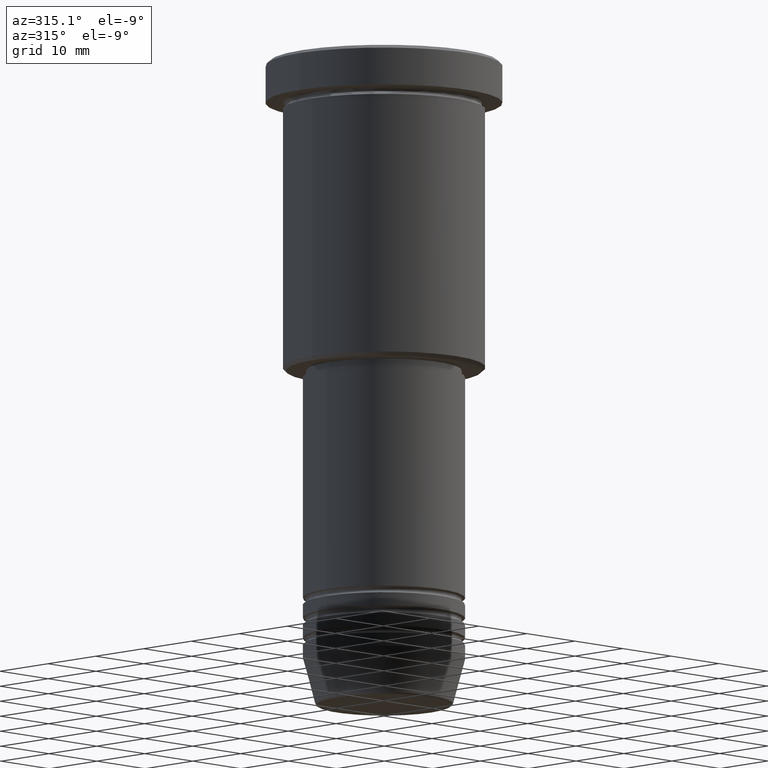
[diagram: clean part render]
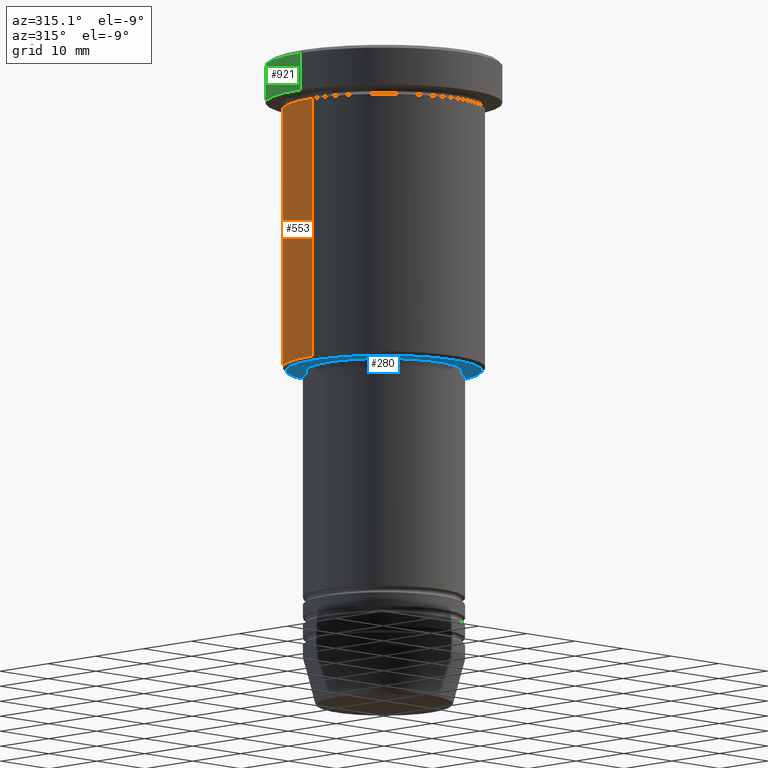
[diagram: same view with three faces highlighted in distinct colors, each labeled with its STEP entity id]
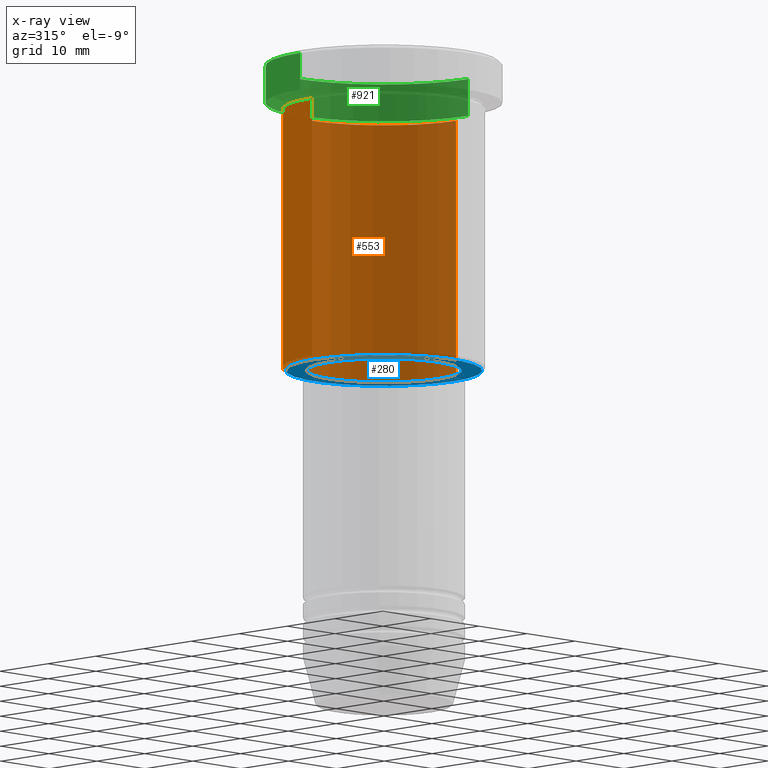
[diagram: x-ray of the same camera — body ghosted, the three highlighted faces saturated]
A machine part, auxiliary view with three faces highlighted in distinct colors.
The next image is the same camera in x-ray (body ghosted, the three faces saturated) — at least one of them is partly hidden behind the body in this view.
Their STEP definitions:

[orange] entity #553 — the highlighted cylindrical surface (partial cylindrical patch) has radius 15 mm, axis along (-0, -0, 1).
#18 = ORIENTED_EDGE ( 'NONE', *, *, #1077, .F. ) ;
#19 = ORIENTED_EDGE ( 'NONE', *, *, #180, .T. ) ;
#23 = VECTOR ( 'NONE', #848, 1000.000000000000000 ) ;
#24 = DIRECTION ( 'NONE',  ( -0.000000000000000000, -0.000000000000000000, 1.000000000000000000 ) ) ;
#30 = CARTESIAN_POINT ( 'NONE',  ( 15.00000000000000000, 0.000000000000000000, -6.999999999999995559 ) ) ;
#125 = LINE ( 'NONE', #316, #23 ) ;
#140 = AXIS2_PLACEMENT_3D ( 'NONE', #542, #1004, #380 ) ;
#180 = EDGE_CURVE ( 'NONE', #421, #1176, #346, .T. ) ;
#197 = LINE ( 'NONE', #555, #901 ) ;
#198 = FACE_OUTER_BOUND ( 'NONE', #711, .T. ) ;
#242 = EDGE_CURVE ( 'NONE', #1176, #619, #125, .T. ) ;
#269 = DIRECTION ( 'NONE',  ( -0.000000000000000000, -0.000000000000000000, 1.000000000000000000 ) ) ;
#274 = AXIS2_PLACEMENT_3D ( 'NONE', #632, #269, #816 ) ;
#316 = CARTESIAN_POINT ( 'NONE',  ( -15.00000000000000000, 1.836970198721029589E-15, 0.000000000000000000 ) ) ;
#339 = VERTEX_POINT ( 'NONE', #30 ) ;
#346 = CIRCLE ( 'NONE', #1008, 15.00000000000000000 ) ;
#380 = DIRECTION ( 'NONE',  ( 1.000000000000000000, 0.000000000000000000, 0.000000000000000000 ) ) ;
#392 = DIRECTION ( 'NONE',  ( -1.000000000000000000, 0.000000000000000000, 0.000000000000000000 ) ) ;
#421 = VERTEX_POINT ( 'NONE', #1074 ) ;
#459 = CYLINDRICAL_SURFACE ( 'NONE', #274, 15.00000000000000000 ) ;
#464 = CARTESIAN_POINT ( 'NONE',  ( -15.00000000000000000, 1.836970198721029589E-15, -6.999999999999995559 ) ) ;
#542 = CARTESIAN_POINT ( 'NONE',  ( 0.000000000000000000, 0.000000000000000000, -6.999999999999995559 ) ) ;
#553 = ADVANCED_FACE ( 'NONE', ( #198 ), #459, .T. ) ;
#555 = CARTESIAN_POINT ( 'NONE',  ( 15.00000000000000000, 0.000000000000000000, 0.000000000000000000 ) ) ;
#559 = DIRECTION ( 'NONE',  ( -0.000000000000000000, -0.000000000000000000, 1.000000000000000000 ) ) ;
#619 = VERTEX_POINT ( 'NONE', #464 ) ;
#632 = CARTESIAN_POINT ( 'NONE',  ( 0.000000000000000000, 0.000000000000000000, 0.000000000000000000 ) ) ;
#665 = CARTESIAN_POINT ( 'NONE',  ( -15.00000000000000000, 1.836970198721029589E-15, -45.49999999999999289 ) ) ;
#711 = EDGE_LOOP ( 'NONE', ( #19, #1048, #18, #1078 ) ) ;
#743 = CARTESIAN_POINT ( 'NONE',  ( 0.000000000000000000, 0.000000000000000000, -45.49999999999999289 ) ) ;
#816 = DIRECTION ( 'NONE',  ( 1.000000000000000000, 0.000000000000000000, 0.000000000000000000 ) ) ;
#848 = DIRECTION ( 'NONE',  ( -0.000000000000000000, -0.000000000000000000, 1.000000000000000000 ) ) ;
#901 = VECTOR ( 'NONE', #559, 1000.000000000000000 ) ;
#978 = CIRCLE ( 'NONE', #140, 15.00000000000000000 ) ;
#1004 = DIRECTION ( 'NONE',  ( -0.000000000000000000, -0.000000000000000000, 1.000000000000000000 ) ) ;
#1008 = AXIS2_PLACEMENT_3D ( 'NONE', #743, #24, #392 ) ;
#1048 = ORIENTED_EDGE ( 'NONE', *, *, #242, .T. ) ;
#1067 = EDGE_CURVE ( 'NONE', #421, #339, #197, .T. ) ;
#1074 = CARTESIAN_POINT ( 'NONE',  ( 15.00000000000000000, 0.000000000000000000, -45.49999999999999289 ) ) ;
#1077 = EDGE_CURVE ( 'NONE', #339, #619, #978, .T. ) ;
#1078 = ORIENTED_EDGE ( 'NONE', *, *, #1067, .F. ) ;
#1176 = VERTEX_POINT ( 'NONE', #665 ) ;

[blue] entity #280 — the highlighted planar face has unit normal (0, 0, -1).
#25 = AXIS2_PLACEMENT_3D ( 'NONE', #1086, #364, #281 ) ;
#68 = VERTEX_POINT ( 'NONE', #93 ) ;
#69 = VERTEX_POINT ( 'NONE', #287 ) ;
#93 = CARTESIAN_POINT ( 'NONE',  ( -11.50000000000000000, 1.408343819019456176E-15, -46.00000000000000000 ) ) ;
#100 = CARTESIAN_POINT ( 'NONE',  ( 11.50000000000000000, 0.000000000000000000, -46.00000000000000000 ) ) ;
#128 = VERTEX_POINT ( 'NONE', #100 ) ;
#134 = ORIENTED_EDGE ( 'NONE', *, *, #543, .T. ) ;
#206 = DIRECTION ( 'NONE',  ( 0.000000000000000000, 0.000000000000000000, -1.000000000000000000 ) ) ;
#229 = CARTESIAN_POINT ( 'NONE',  ( 0.000000000000000000, 15.00000000000000000, -45.99999999999999289 ) ) ;
#280 = ADVANCED_FACE ( 'NONE', ( #669, #679 ), #1029, .T. ) ;
#281 = DIRECTION ( 'NONE',  ( -1.000000000000000000, 0.000000000000000000, 0.000000000000000000 ) ) ;
#287 = CARTESIAN_POINT ( 'NONE',  ( 14.49999999999999645, 0.000000000000000000, -45.99999999999999289 ) ) ;
#297 = CIRCLE ( 'NONE', #368, 11.50000000000000000 ) ;
#303 = DIRECTION ( 'NONE',  ( 1.000000000000000000, 0.000000000000000000, 0.000000000000000000 ) ) ;
#322 = DIRECTION ( 'NONE',  ( 0.000000000000000000, 0.000000000000000000, -1.000000000000000000 ) ) ;
#338 = CARTESIAN_POINT ( 'NONE',  ( 0.000000000000000000, 0.000000000000000000, -46.00000000000000000 ) ) ;
#364 = DIRECTION ( 'NONE',  ( 0.000000000000000000, 0.000000000000000000, -1.000000000000000000 ) ) ;
#367 = AXIS2_PLACEMENT_3D ( 'NONE', #395, #845, #303 ) ;
#368 = AXIS2_PLACEMENT_3D ( 'NONE', #338, #1065, #699 ) ;
#389 = AXIS2_PLACEMENT_3D ( 'NONE', #836, #206, #570 ) ;
#395 = CARTESIAN_POINT ( 'NONE',  ( 0.000000000000000000, 0.000000000000000000, -46.00000000000000000 ) ) ;
#397 = DIRECTION ( 'NONE',  ( -1.000000000000000000, 0.000000000000000000, -0.000000000000000000 ) ) ;
#488 = CIRCLE ( 'NONE', #389, 14.49999999999999645 ) ;
#534 = EDGE_LOOP ( 'NONE', ( #754, #1049 ) ) ;
#536 = VERTEX_POINT ( 'NONE', #742 ) ;
#543 = EDGE_CURVE ( 'NONE', #69, #536, #617, .T. ) ;
#570 = DIRECTION ( 'NONE',  ( -1.000000000000000000, 0.000000000000000000, 0.000000000000000000 ) ) ;
#617 = CIRCLE ( 'NONE', #25, 14.49999999999999645 ) ;
#660 = EDGE_CURVE ( 'NONE', #536, #69, #488, .T. ) ;
#669 = FACE_OUTER_BOUND ( 'NONE', #931, .T. ) ;
#671 = AXIS2_PLACEMENT_3D ( 'NONE', #229, #322, #397 ) ;
#679 = FACE_BOUND ( 'NONE', #534, .T. ) ;
#699 = DIRECTION ( 'NONE',  ( 1.000000000000000000, 0.000000000000000000, 0.000000000000000000 ) ) ;
#700 = EDGE_CURVE ( 'NONE', #68, #128, #879, .T. ) ;
#742 = CARTESIAN_POINT ( 'NONE',  ( -14.49999999999999645, 1.806354028742345802E-15, -45.99999999999999289 ) ) ;
#754 = ORIENTED_EDGE ( 'NONE', *, *, #942, .T. ) ;
#836 = CARTESIAN_POINT ( 'NONE',  ( 0.000000000000000000, 0.000000000000000000, -45.99999999999999289 ) ) ;
#845 = DIRECTION ( 'NONE',  ( -0.000000000000000000, -0.000000000000000000, 1.000000000000000000 ) ) ;
#879 = CIRCLE ( 'NONE', #367, 11.50000000000000000 ) ;
#931 = EDGE_LOOP ( 'NONE', ( #134, #1090 ) ) ;
#942 = EDGE_CURVE ( 'NONE', #128, #68, #297, .T. ) ;
#1029 = PLANE ( 'NONE',  #671 ) ;
#1049 = ORIENTED_EDGE ( 'NONE', *, *, #700, .T. ) ;
#1065 = DIRECTION ( 'NONE',  ( -0.000000000000000000, -0.000000000000000000, 1.000000000000000000 ) ) ;
#1086 = CARTESIAN_POINT ( 'NONE',  ( 0.000000000000000000, 0.000000000000000000, -45.99999999999999289 ) ) ;
#1090 = ORIENTED_EDGE ( 'NONE', *, *, #660, .T. ) ;

[green] entity #921 — the highlighted cylindrical surface (partial cylindrical patch) has radius 17.5 mm, axis along (-0, -0, 1).
#8 = DIRECTION ( 'NONE',  ( 1.000000000000000000, 0.000000000000000000, 0.000000000000000000 ) ) ;
#52 = DIRECTION ( 'NONE',  ( 1.000000000000000000, 0.000000000000000000, 0.000000000000000000 ) ) ;
#60 = FACE_OUTER_BOUND ( 'NONE', #550, .T. ) ;
#123 = CARTESIAN_POINT ( 'NONE',  ( -17.50000000000000000, 2.143131898507868248E-15, -0.4999999999999866773 ) ) ;
#153 = VERTEX_POINT ( 'NONE', #640 ) ;
#166 = VECTOR ( 'NONE', #1000, 1000.000000000000000 ) ;
#174 = EDGE_CURVE ( 'NONE', #1047, #703, #199, .T. ) ;
#176 = CARTESIAN_POINT ( 'NONE',  ( 17.50000000000000000, 0.000000000000000000, -0.4999999999999866773 ) ) ;
#193 = DIRECTION ( 'NONE',  ( 1.000000000000000000, 0.000000000000000000, 0.000000000000000000 ) ) ;
#199 = LINE ( 'NONE', #483, #201 ) ;
#201 = VECTOR ( 'NONE', #837, 1000.000000000000000 ) ;
#209 = ORIENTED_EDGE ( 'NONE', *, *, #1028, .T. ) ;
#279 = CIRCLE ( 'NONE', #1055, 17.50000000000000000 ) ;
#288 = CARTESIAN_POINT ( 'NONE',  ( 0.000000000000000000, 0.000000000000000000, -5.999999999999995559 ) ) ;
#369 = CARTESIAN_POINT ( 'NONE',  ( -17.50000000000000000, 2.143131898507868248E-15, -5.999999999999995559 ) ) ;
#434 = VERTEX_POINT ( 'NONE', #176 ) ;
#483 = CARTESIAN_POINT ( 'NONE',  ( -17.50000000000000000, 2.143131898507868248E-15, 0.000000000000000000 ) ) ;
#519 = CYLINDRICAL_SURFACE ( 'NONE', #787, 17.50000000000000000 ) ;
#546 = ORIENTED_EDGE ( 'NONE', *, *, #573, .F. ) ;
#550 = EDGE_LOOP ( 'NONE', ( #209, #627, #1103, #546 ) ) ;
#573 = EDGE_CURVE ( 'NONE', #153, #434, #922, .T. ) ;
#618 = CIRCLE ( 'NONE', #1130, 17.50000000000000000 ) ;
#627 = ORIENTED_EDGE ( 'NONE', *, *, #174, .T. ) ;
#638 = CARTESIAN_POINT ( 'NONE',  ( 0.000000000000000000, 0.000000000000000000, -0.4999999999999866773 ) ) ;
#640 = CARTESIAN_POINT ( 'NONE',  ( 17.50000000000000000, 0.000000000000000000, -5.999999999999995559 ) ) ;
#703 = VERTEX_POINT ( 'NONE', #123 ) ;
#717 = DIRECTION ( 'NONE',  ( -0.000000000000000000, -0.000000000000000000, 1.000000000000000000 ) ) ;
#735 = CARTESIAN_POINT ( 'NONE',  ( 17.50000000000000000, 0.000000000000000000, 0.000000000000000000 ) ) ;
#741 = DIRECTION ( 'NONE',  ( 0.000000000000000000, 0.000000000000000000, -1.000000000000000000 ) ) ;
#787 = AXIS2_PLACEMENT_3D ( 'NONE', #986, #873, #52 ) ;
#837 = DIRECTION ( 'NONE',  ( -0.000000000000000000, -0.000000000000000000, 1.000000000000000000 ) ) ;
#873 = DIRECTION ( 'NONE',  ( -0.000000000000000000, -0.000000000000000000, 1.000000000000000000 ) ) ;
#921 = ADVANCED_FACE ( 'NONE', ( #60 ), #519, .T. ) ;
#922 = LINE ( 'NONE', #735, #166 ) ;
#986 = CARTESIAN_POINT ( 'NONE',  ( 0.000000000000000000, 0.000000000000000000, 0.000000000000000000 ) ) ;
#1000 = DIRECTION ( 'NONE',  ( -0.000000000000000000, -0.000000000000000000, 1.000000000000000000 ) ) ;
#1028 = EDGE_CURVE ( 'NONE', #153, #1047, #279, .T. ) ;
#1047 = VERTEX_POINT ( 'NONE', #369 ) ;
#1055 = AXIS2_PLACEMENT_3D ( 'NONE', #288, #717, #8 ) ;
#1084 = EDGE_CURVE ( 'NONE', #703, #434, #618, .T. ) ;
#1103 = ORIENTED_EDGE ( 'NONE', *, *, #1084, .T. ) ;
#1130 = AXIS2_PLACEMENT_3D ( 'NONE', #638, #741, #193 ) ;